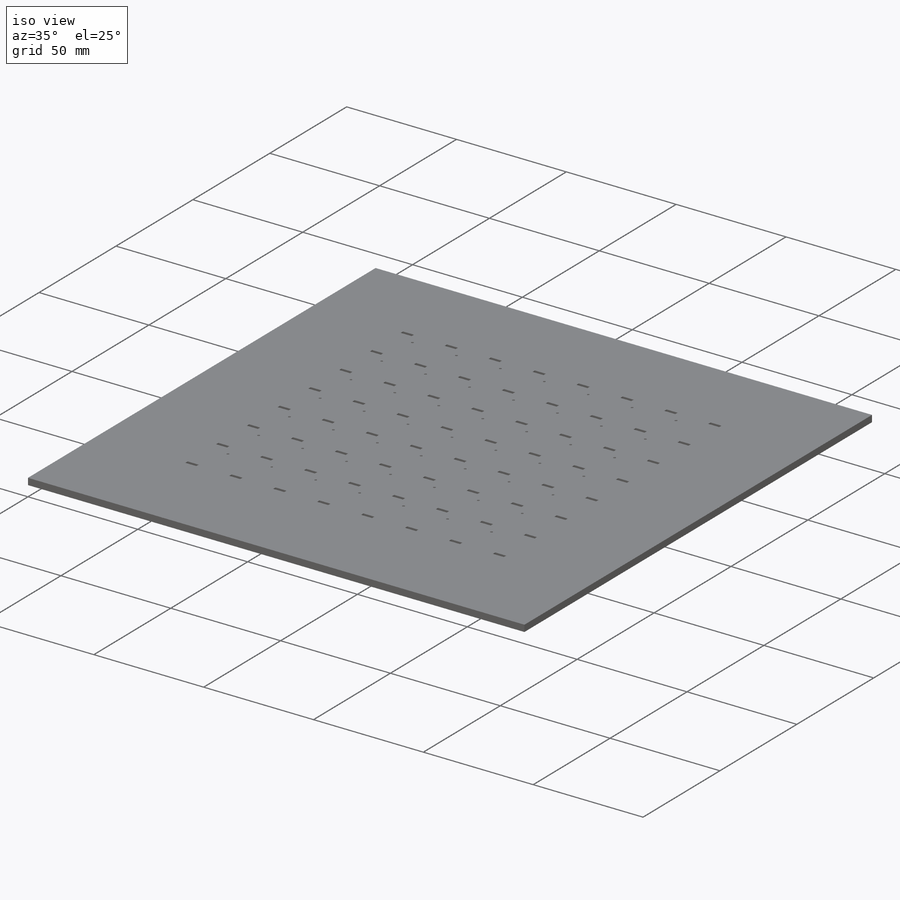
[diagram: iso view]
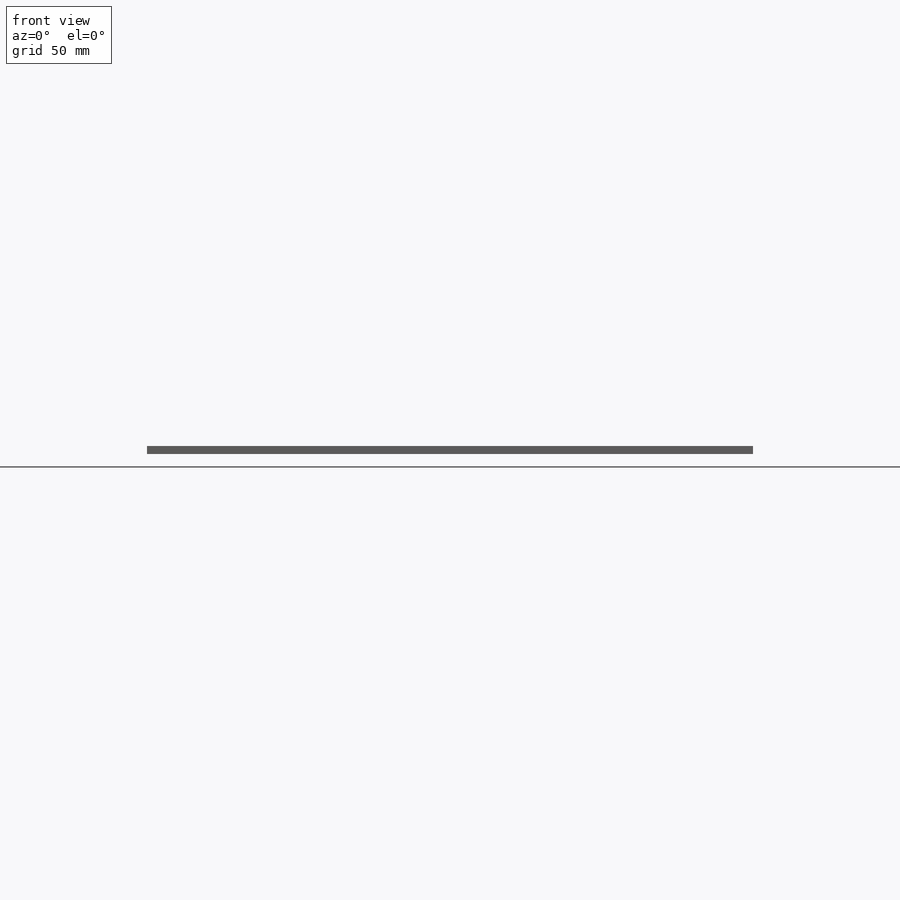
[diagram: front view]
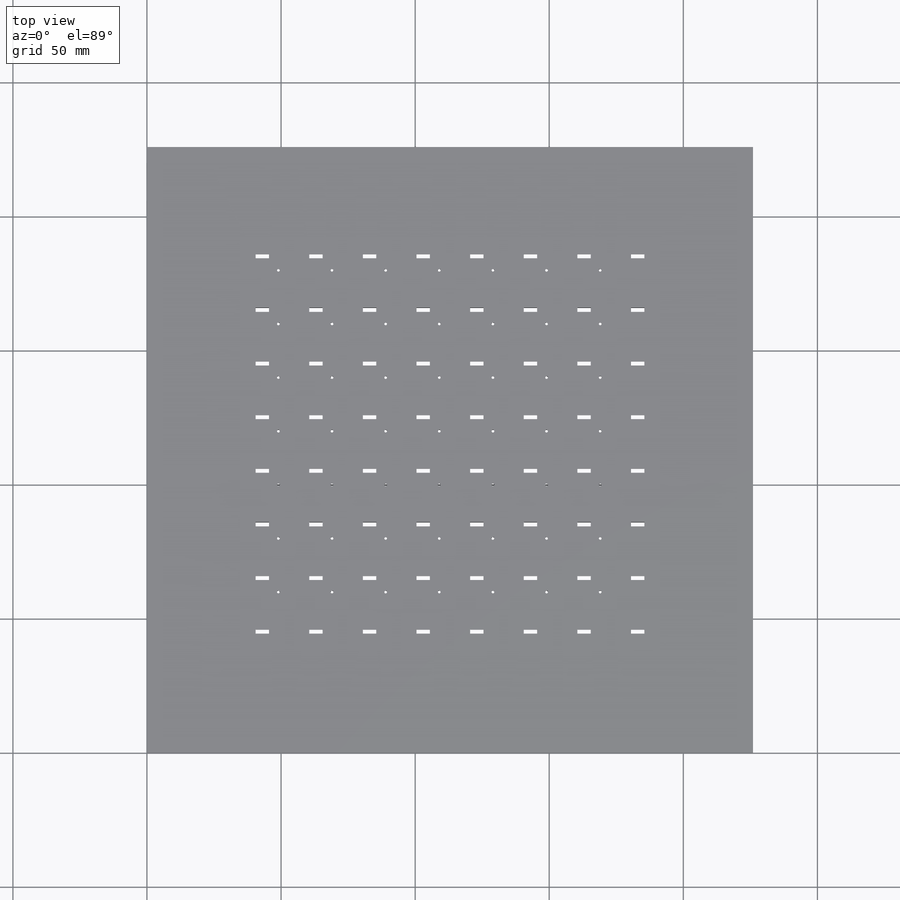
[diagram: top view]
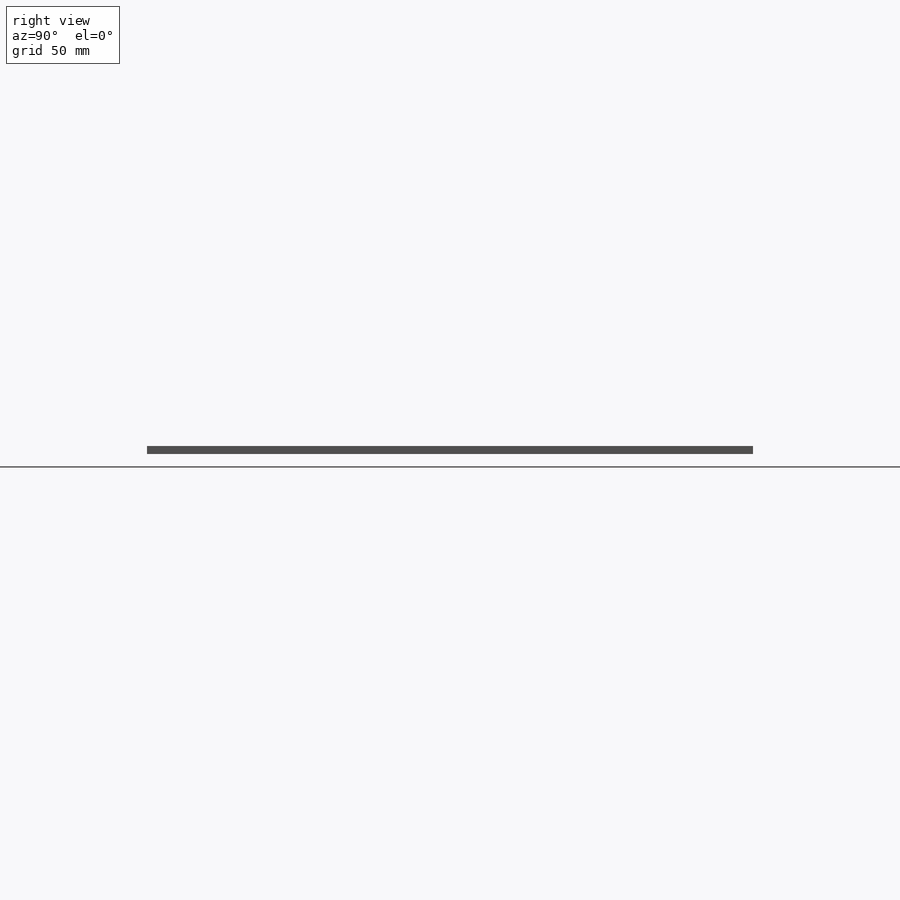
[diagram: right view]
SOLIDWORKS PART (.sldprt)
format: sldprt  version: not decoded by parser v0  size: 888,832 bytes
history: native  units: mm
features: plane x3, sketch x3, cut_extrude x2, pattern_linear x2, material x1, extrude x1 (+10 scaffold rows collapsed)
feature tree (22):
  scaffold x10  (default folders/planes/origin — collapsed)
  material  "Matériau <non spécifié>"
  plane  "Plan de face"
  plane  "Plan de dessus"
  plane  "Plan de droite"
  sketch  "Esquisse2"  dims[D1=226.0mm D2=226.0mm]
  extrude  "Boss.-Extru.1"  Depth=3mm
  sketch  "Esquisse6"  dims[D1=1.5mm D2=5.0mm D3=40.5mm D4=40.0mm]
  cut_extrude  "Enlèv. mat.-Extru.1"  Depth=5mm
  pattern_linear  "Répétition linéaire2"  Count1=8 Count2=8 Spacing1=20mm Spacing2=20mm
  sketch  "Esquisse8"  dims[c1.D1=1.0mm c1.D2=1.0mm c1.D3=1.0mm c2.D2=46.0mm c2.D3=49.0mm]
  cut_extrude  "Enlèv. mat.-Extru.2"  Depth=5mm
  pattern_linear  "Répétition linéaire3"  Count1=7 Count2=7 Spacing1=20mm Spacing2=20mm
decode coverage: 8 of 8 modeling features carry decoded parameters
note: suppression state not decoded; provenance and decode notes live in map.json
